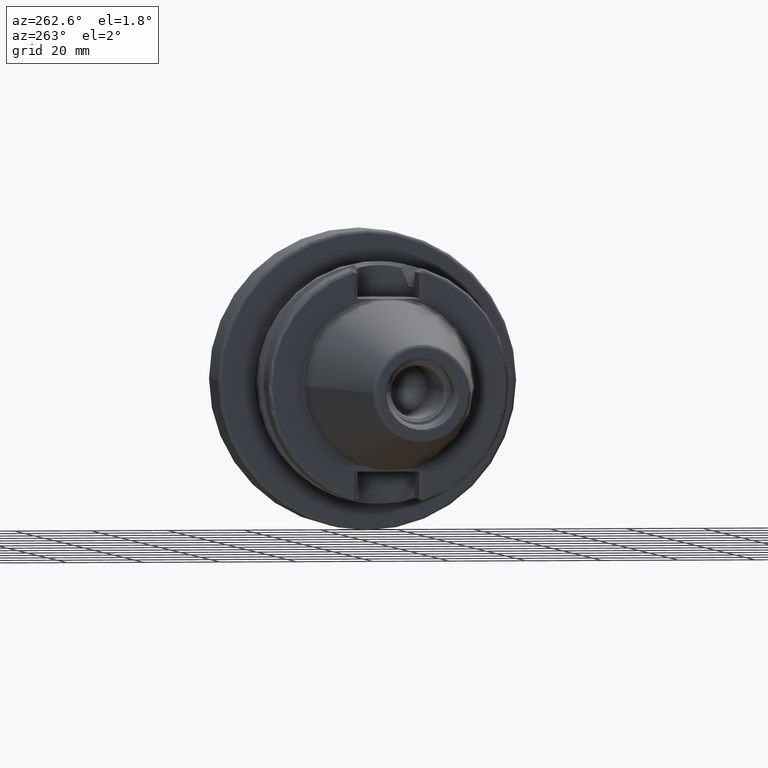
[diagram: clean part render]
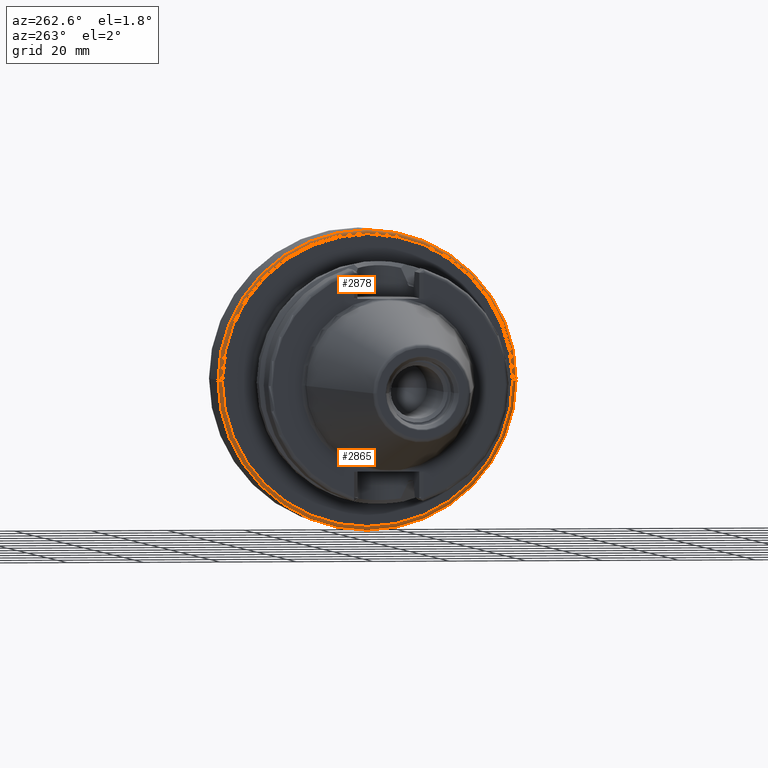
[diagram: same view with one multi-face feature highlighted, each face labeled with its STEP entity id]
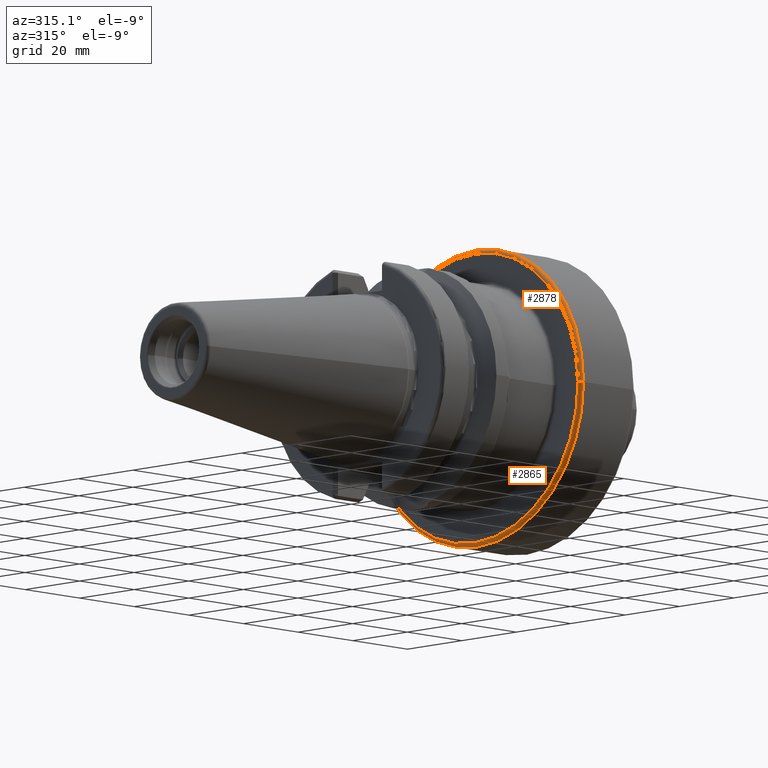
[diagram: same view with one multi-face feature highlighted, each face labeled with its STEP entity id]
A machine part, auxiliary view. The highlighted faces form ONE feature: a constant-radius fillet chain: 2 tangent blend faces with common blend radius 1 mm. The faces share edges in the B-rep.
A second angle (auxiliary view) of the same feature is appended — it is thin or edge-on in the first view.
Their STEP definitions:
[1] entity #2865 (Torus):
#894=CARTESIAN_POINT('',(4.5E1,0.E0,0.E0));
#895=DIRECTION('',(-1.E0,0.E0,0.E0));
#896=DIRECTION('',(0.E0,1.E0,0.E0));
#897=AXIS2_PLACEMENT_3D('',#894,#895,#896);
#904=CARTESIAN_POINT('',(4.6E1,3.8E1,0.E0));
#905=DIRECTION('',(0.E0,0.E0,-1.E0));
#906=DIRECTION('',(-1.E0,2.131628207280E-14,0.E0));
#907=AXIS2_PLACEMENT_3D('',#904,#905,#906);
#909=CARTESIAN_POINT('',(4.6E1,-3.8E1,-1.332267629550E-14));
#910=DIRECTION('',(0.E0,0.E0,1.E0));
#911=DIRECTION('',(-1.E0,-2.131628207280E-14,0.E0));
#912=AXIS2_PLACEMENT_3D('',#909,#910,#911);
#943=CARTESIAN_POINT('',(4.6E1,0.E0,0.E0));
#944=DIRECTION('',(-1.E0,0.E0,0.E0));
#945=DIRECTION('',(0.E0,1.E0,0.E0));
#946=AXIS2_PLACEMENT_3D('',#943,#944,#945);
#1659=CARTESIAN_POINT('',(4.5E1,3.8E1,0.E0));
#1660=CARTESIAN_POINT('',(4.5E1,-3.8E1,0.E0));
#1661=VERTEX_POINT('',#1659);
#1662=VERTEX_POINT('',#1660);
#1663=CARTESIAN_POINT('',(4.6E1,3.9E1,0.E0));
#1664=CARTESIAN_POINT('',(4.6E1,-3.9E1,0.E0));
#1665=VERTEX_POINT('',#1663);
#1666=VERTEX_POINT('',#1664);
#2851=CARTESIAN_POINT('',(4.6E1,0.E0,0.E0));
#2852=DIRECTION('',(1.E0,0.E0,0.E0));
#2853=DIRECTION('',(0.E0,9.999843148713E-1,5.600893793159E-3));
#2854=AXIS2_PLACEMENT_3D('',#2851,#2852,#2853);
#2855=TOROIDAL_SURFACE('',#2854,3.8E1,1.E0);
#2856=ORIENTED_EDGE('',*,*,#2840,.T.);
#2858=ORIENTED_EDGE('',*,*,#2857,.T.);
#2860=ORIENTED_EDGE('',*,*,#2859,.F.);
#2862=ORIENTED_EDGE('',*,*,#2861,.F.);
#2863=EDGE_LOOP('',(#2856,#2858,#2860,#2862));
#2864=FACE_OUTER_BOUND('',#2863,.F.);
#2865=ADVANCED_FACE('',(#2864),#2855,.T.);
#898=CIRCLE('',#897,3.8E1);
#908=CIRCLE('',#907,1.E0);
#913=CIRCLE('',#912,1.E0);
#947=CIRCLE('',#946,3.9E1);
#2840=EDGE_CURVE('',#1661,#1662,#898,.T.);
#2857=EDGE_CURVE('',#1662,#1666,#913,.T.);
#2859=EDGE_CURVE('',#1665,#1666,#947,.T.);
#2861=EDGE_CURVE('',#1661,#1665,#908,.T.);
[2] entity #2878 (Torus):
#899=CARTESIAN_POINT('',(4.5E1,0.E0,0.E0));
#900=DIRECTION('',(-1.E0,0.E0,0.E0));
#901=DIRECTION('',(0.E0,-1.E0,0.E0));
#902=AXIS2_PLACEMENT_3D('',#899,#900,#901);
#904=CARTESIAN_POINT('',(4.6E1,3.8E1,0.E0));
#905=DIRECTION('',(0.E0,0.E0,-1.E0));
#906=DIRECTION('',(-1.E0,2.131628207280E-14,0.E0));
#907=AXIS2_PLACEMENT_3D('',#904,#905,#906);
#909=CARTESIAN_POINT('',(4.6E1,-3.8E1,-1.332267629550E-14));
#910=DIRECTION('',(0.E0,0.E0,1.E0));
#911=DIRECTION('',(-1.E0,-2.131628207280E-14,0.E0));
#912=AXIS2_PLACEMENT_3D('',#909,#910,#911);
#919=CARTESIAN_POINT('',(4.6E1,0.E0,0.E0));
#920=DIRECTION('',(-1.E0,0.E0,0.E0));
#921=DIRECTION('',(0.E0,-1.E0,0.E0));
#922=AXIS2_PLACEMENT_3D('',#919,#920,#921);
#1659=CARTESIAN_POINT('',(4.5E1,3.8E1,0.E0));
#1660=CARTESIAN_POINT('',(4.5E1,-3.8E1,0.E0));
#1661=VERTEX_POINT('',#1659);
#1662=VERTEX_POINT('',#1660);
#1663=CARTESIAN_POINT('',(4.6E1,3.9E1,0.E0));
#1664=CARTESIAN_POINT('',(4.6E1,-3.9E1,0.E0));
#1665=VERTEX_POINT('',#1663);
#1666=VERTEX_POINT('',#1664);
#2866=CARTESIAN_POINT('',(4.6E1,0.E0,0.E0));
#2867=DIRECTION('',(1.E0,0.E0,0.E0));
#2868=DIRECTION('',(0.E0,-9.999843148713E-1,-5.600893793159E-3));
#2869=AXIS2_PLACEMENT_3D('',#2866,#2867,#2868);
#2870=TOROIDAL_SURFACE('',#2869,3.8E1,1.E0);
#2871=ORIENTED_EDGE('',*,*,#2842,.T.);
#2872=ORIENTED_EDGE('',*,*,#2861,.T.);
#2874=ORIENTED_EDGE('',*,*,#2873,.F.);
#2875=ORIENTED_EDGE('',*,*,#2857,.F.);
#2876=EDGE_LOOP('',(#2871,#2872,#2874,#2875));
#2877=FACE_OUTER_BOUND('',#2876,.F.);
#2878=ADVANCED_FACE('',(#2877),#2870,.T.);
#903=CIRCLE('',#902,3.8E1);
#908=CIRCLE('',#907,1.E0);
#913=CIRCLE('',#912,1.E0);
#923=CIRCLE('',#922,3.9E1);
#2842=EDGE_CURVE('',#1662,#1661,#903,.T.);
#2857=EDGE_CURVE('',#1662,#1666,#913,.T.);
#2861=EDGE_CURVE('',#1661,#1665,#908,.T.);
#2873=EDGE_CURVE('',#1666,#1665,#923,.T.);